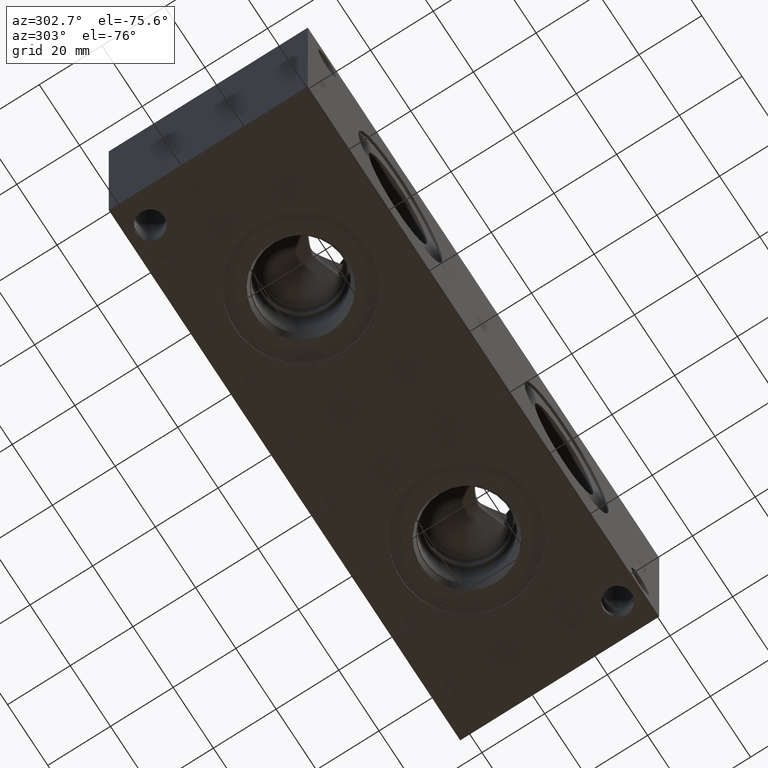
[diagram: clean part render]
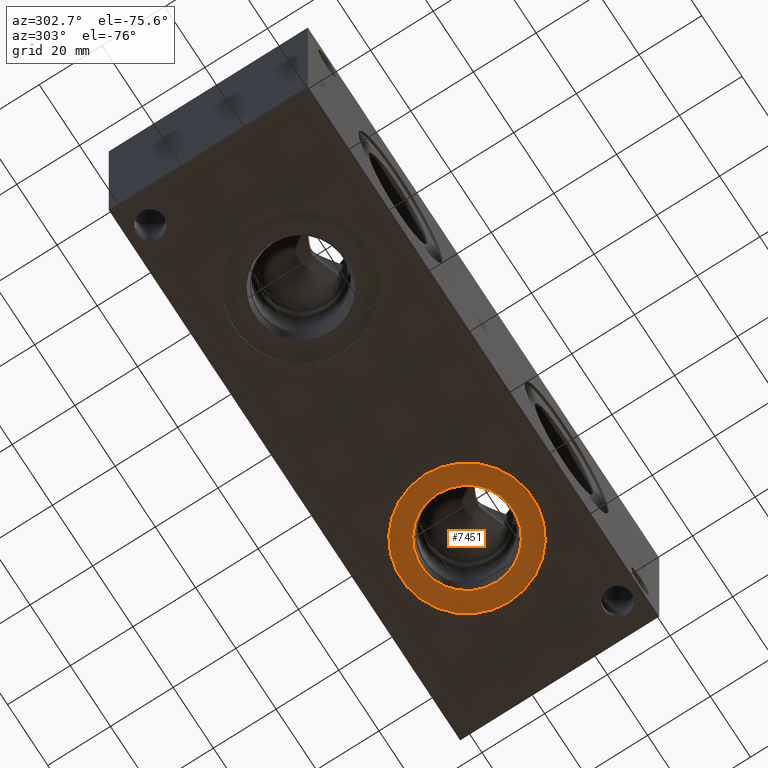
[diagram: same view with one face highlighted and labeled with its STEP entity id]
A machine part, auxiliary view. The second image highlights one B-rep face of the part: STEP entity #7451.
In plain terms, the highlighted planar face has unit normal (0, 0, 1).
Its self-contained STEP definition (entity closure, byte-faithful):
#103=CIRCLE('',#7766,21.0185);
#104=CIRCLE('',#7767,21.0185);
#105=CIRCLE('',#7769,14.5923);
#106=CIRCLE('',#7770,14.5923);
#243=FACE_BOUND('',#1249,.T.);
#842=FACE_OUTER_BOUND('',#1248,.T.);
#1248=EDGE_LOOP('',(#6182,#6183));
#1249=EDGE_LOOP('',(#6184,#6185));
#3333=VERTEX_POINT('',#12385);
#3334=VERTEX_POINT('',#12387);
#3335=VERTEX_POINT('',#12391);
#3336=VERTEX_POINT('',#12392);
#4308=EDGE_CURVE('',#3333,#3334,#103,.T.);
#4309=EDGE_CURVE('',#3334,#3333,#104,.T.);
#4310=EDGE_CURVE('',#3335,#3336,#105,.T.);
#4311=EDGE_CURVE('',#3336,#3335,#106,.T.);
#6182=ORIENTED_EDGE('',*,*,#4309,.F.);
#6183=ORIENTED_EDGE('',*,*,#4308,.F.);
#6184=ORIENTED_EDGE('',*,*,#4310,.T.);
#6185=ORIENTED_EDGE('',*,*,#4311,.T.);
#6838=PLANE('',#7768);
#7451=ADVANCED_FACE('',(#842,#243),#6838,.F.);
#7766=AXIS2_PLACEMENT_3D('',#12388,#9075,#9076);
#7767=AXIS2_PLACEMENT_3D('',#12389,#9077,#9078);
#7768=AXIS2_PLACEMENT_3D('',#12390,#9079,#9080);
#7769=AXIS2_PLACEMENT_3D('',#12393,#9081,#9082);
#7770=AXIS2_PLACEMENT_3D('',#12394,#9083,#9084);
#9075=DIRECTION('center_axis',(0.,0.,1.));
#9076=DIRECTION('ref_axis',(1.,0.,0.));
#9077=DIRECTION('center_axis',(0.,0.,1.));
#9078=DIRECTION('ref_axis',(1.,0.,0.));
#9079=DIRECTION('center_axis',(0.,0.,1.));
#9080=DIRECTION('ref_axis',(1.,0.,0.));
#9081=DIRECTION('center_axis',(0.,0.,1.));
#9082=DIRECTION('ref_axis',(1.,0.,0.));
#9083=DIRECTION('center_axis',(0.,0.,1.));
#9084=DIRECTION('ref_axis',(1.,0.,0.));
#12385=CARTESIAN_POINT('',(107.5563,31.75,0.7874));
#12387=CARTESIAN_POINT('',(149.5933,31.75,0.7874));
#12388=CARTESIAN_POINT('Origin',(128.5748,31.75,0.7874));
#12389=CARTESIAN_POINT('Origin',(128.5748,31.75,0.7874));
#12390=CARTESIAN_POINT('Origin',(143.1671,31.75,0.7874));
#12391=CARTESIAN_POINT('',(143.1671,31.75,0.7874));
#12392=CARTESIAN_POINT('',(113.9825,31.75,0.7874));
#12393=CARTESIAN_POINT('Origin',(128.5748,31.75,0.7874));
#12394=CARTESIAN_POINT('Origin',(128.5748,31.75,0.7874));